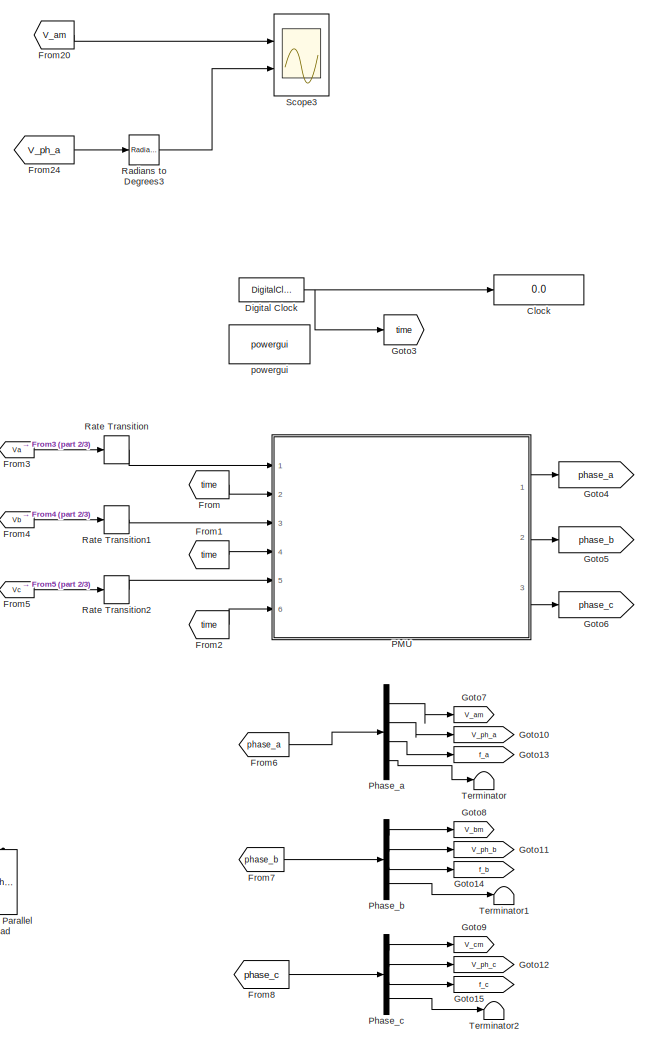
[diagram: root canvas - part 1/3, right side, full height]
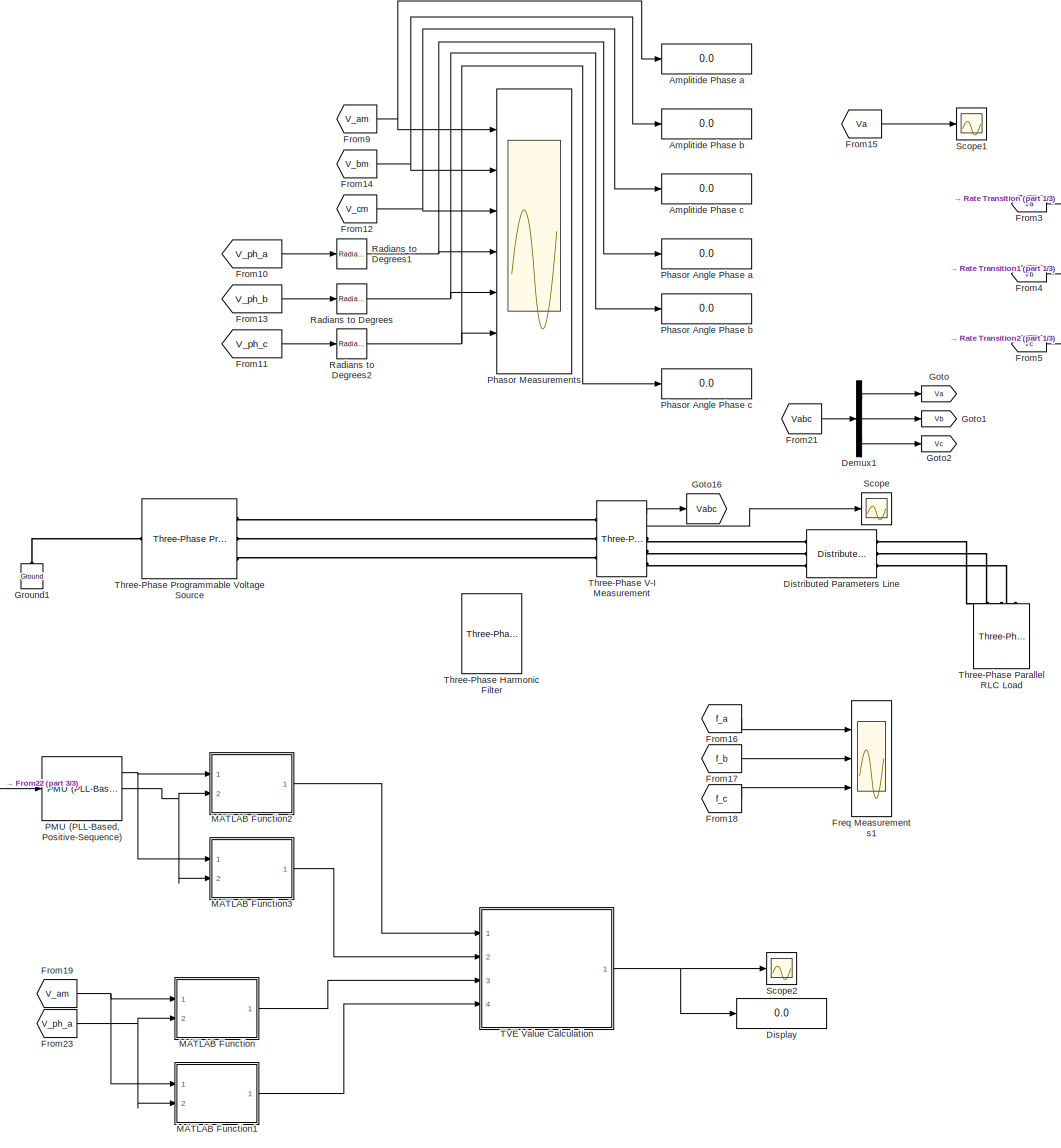
[diagram: root canvas - part 2/3, center side, full height]
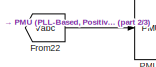
[diagram: root canvas - part 3/3, bottom left region]
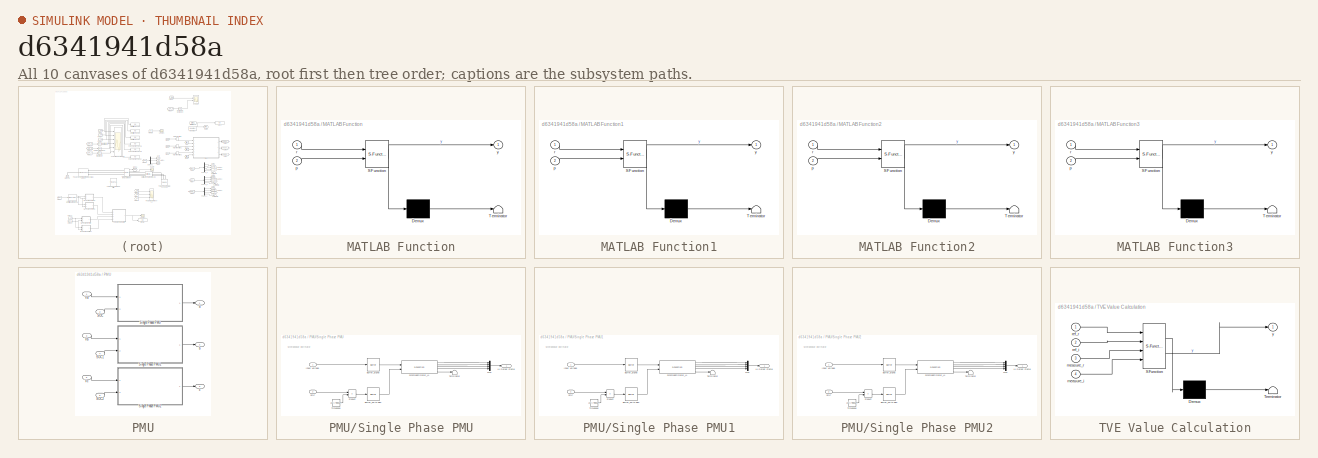
[diagram: thumbnail index - all 10 canvases of the model, root first then tree order]
MODEL slx_d6341941d58a
KIND model
CONFIG AbsTol = auto
CONFIG EnableMultiTasking = off
CONFIG FixedStep = auto
CONFIG MaxStep = auto
CONFIG MinStep = auto
CONFIG RelTol = 1e-3
CONFIG SampleTimeConstraint = Unconstrained
CONFIG Solver = VariableStepAuto
CONFIG SolverName = VariableStepAuto
CONFIG StartTime = 0.0
CONFIG StopTime = 3
BLOCK [Display] Amplitide Phase a
  Decimation = 1
  Ports = [1]
BLOCK [Display] Amplitide Phase b
  Decimation = 1
  Ports = [1]
BLOCK [Display] Amplitide Phase c
  Decimation = 1
  Ports = [1]
BLOCK [Display] Clock
  Decimation = 1
  Format = long
  Ports = [1]
BLOCK [Demux] Demux1
  Outputs = 3
  Ports = [1, 3]
BLOCK [DigitalClock] Digital Clock
  SampleTime = 1/50000
BLOCK [Display] Display
  Decimation = 1
  Ports = [1]
BLOCK [Reference] Distributed Parameters Line  REF=powerlib/Elements/Distributed Parameters Line
  Ports = [0, 0, 0, 0, 0, 3, 3]
  SourceBlock = powerlib/Elements/Distributed Parameters Line
  SourceProductBaseCode = PS
  SourceType = Distributed Parameters Line
BLOCK [Scope] Freq Measurements1
  Floating = off
  NumInputPorts = 3
  Ports = [3]
  ScopeSpecificationString = Simulink.scopes.TimeScopeBlockCfg('CurrentConfiguration', extmgr.ConfigurationSet(extmgr.Configuration('Core','General UI',true),extmgr.Configuration('Core','Source UI',true),extmgr.Configuration('Sources','WiredSimulink',true,'DataLogging',true,'DataLoggingVariableName','PMU_measure1'),extmgr.Configuration('Visuals','Time Domain',true,'SerializedDisplays',{struct('MinYLimReal','46.39879','MaxYLim...<+2771ch>
BLOCK [From] From
  GotoTag = time
BLOCK [From] From1
  GotoTag = time
BLOCK [From] From10
  GotoTag = V_ph_a
BLOCK [From] From11
  GotoTag = V_ph_c
BLOCK [From] From12
  GotoTag = V_cm
BLOCK [From] From13
  GotoTag = V_ph_b
BLOCK [From] From14
  GotoTag = V_bm
BLOCK [From] From15
  GotoTag = Va
BLOCK [From] From16
  GotoTag = f_a
BLOCK [From] From17
  GotoTag = f_b
BLOCK [From] From18
  GotoTag = f_c
BLOCK [From] From19
  GotoTag = V_am
BLOCK [From] From2
  GotoTag = time
BLOCK [From] From20
  GotoTag = V_am
BLOCK [From] From21
  GotoTag = Vabc
BLOCK [From] From22
  GotoTag = Vabc
BLOCK [From] From23
  GotoTag = V_ph_a
BLOCK [From] From24
  GotoTag = V_ph_a
BLOCK [From] From3
  GotoTag = Va
BLOCK [From] From4
  GotoTag = Vb
BLOCK [From] From5
  GotoTag = Vc
BLOCK [From] From6
  GotoTag = phase_a
BLOCK [From] From7
  GotoTag = phase_b
BLOCK [From] From8
  GotoTag = phase_c
BLOCK [From] From9
  GotoTag = V_am
BLOCK [Goto] Goto
  GotoTag = Va
BLOCK [Goto] Goto1
  GotoTag = Vb
BLOCK [Goto] Goto10
  GotoTag = V_ph_a
BLOCK [Goto] Goto11
  GotoTag = V_ph_b
BLOCK [Goto] Goto12
  GotoTag = V_ph_c
BLOCK [Goto] Goto13
  GotoTag = f_a
BLOCK [Goto] Goto14
  GotoTag = f_b
BLOCK [Goto] Goto15
  GotoTag = f_c
BLOCK [Goto] Goto16
  GotoTag = Vabc
BLOCK [Goto] Goto2
  GotoTag = Vc
BLOCK [Goto] Goto3
  GotoTag = time
BLOCK [Goto] Goto4
  GotoTag = phase_a
BLOCK [Goto] Goto5
  GotoTag = phase_b
BLOCK [Goto] Goto6
  GotoTag = phase_c
BLOCK [Goto] Goto7
  GotoTag = V_am
BLOCK [Goto] Goto8
  GotoTag = V_bm
BLOCK [Goto] Goto9
  GotoTag = V_cm
BLOCK [Reference] Ground1  REF=powerlib/Elements/Ground
  NameLocation = right
  Ports = [0, 0, 0, 0, 0, 1]
  SourceBlock = powerlib/Elements/Ground
  SourceProductBaseCode = PS
  SourceType = Ground
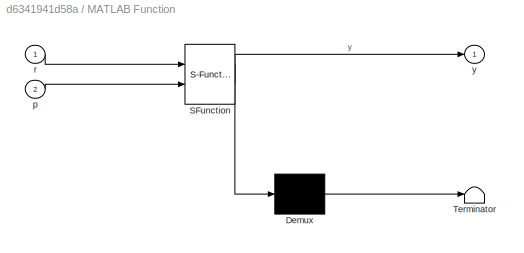
BLOCK [SubSystem] MATLAB Function
  ErrorFcn = Stateflow.Translate.translate
  PermitHierarchicalResolution = ExplicitOnly
  Ports = [2, 1]
  RequestExecContextInheritance = off
  SFBlockType = MATLAB Function
  TreatAsAtomicUnit = on
BLOCK [Demux] MATLAB Function/ Demux 
  Outputs = 1
  Ports = [1, 1]
BLOCK [S-Function] MATLAB Function/ SFunction 
  EnableBusSupport = on
  FunctionName = sf_sfun
  PortCounts = [2 2]
  Ports = [2, 2]
  SFcnIsStateOwnerBlock = off
  SFunctionDeploymentMode = off
  Tag = Stateflow S-Function 2
BLOCK [Terminator] MATLAB Function/ Terminator 
BLOCK [Inport] MATLAB Function/p
  Port = 2
BLOCK [Inport] MATLAB Function/r
BLOCK [Outport] MATLAB Function/y
BLOCK [SubSystem] MATLAB Function1
  ErrorFcn = Stateflow.Translate.translate
  PermitHierarchicalResolution = ExplicitOnly
  Ports = [2, 1]
  RequestExecContextInheritance = off
  SFBlockType = MATLAB Function
  TreatAsAtomicUnit = on
BLOCK [Demux] MATLAB Function1/ Demux 
  Outputs = 1
  Ports = [1, 1]
BLOCK [S-Function] MATLAB Function1/ SFunction 
  EnableBusSupport = on
  FunctionName = sf_sfun
  PortCounts = [2 2]
  Ports = [2, 2]
  SFcnIsStateOwnerBlock = off
  SFunctionDeploymentMode = off
  Tag = Stateflow S-Function 1
BLOCK [Terminator] MATLAB Function1/ Terminator 
BLOCK [Inport] MATLAB Function1/p
  Port = 2
BLOCK [Inport] MATLAB Function1/r
BLOCK [Outport] MATLAB Function1/y
BLOCK [SubSystem] MATLAB Function2
  ErrorFcn = Stateflow.Translate.translate
  PermitHierarchicalResolution = ExplicitOnly
  Ports = [2, 1]
  RequestExecContextInheritance = off
  SFBlockType = MATLAB Function
  TreatAsAtomicUnit = on
BLOCK [Demux] MATLAB Function2/ Demux 
  Outputs = 1
  Ports = [1, 1]
BLOCK [S-Function] MATLAB Function2/ SFunction 
  EnableBusSupport = on
  FunctionName = sf_sfun
  PortCounts = [2 2]
  Ports = [2, 2]
  SFcnIsStateOwnerBlock = off
  SFunctionDeploymentMode = off
  Tag = Stateflow S-Function 3
BLOCK [Terminator] MATLAB Function2/ Terminator 
BLOCK [Inport] MATLAB Function2/p
  Port = 2
BLOCK [Inport] MATLAB Function2/r
BLOCK [Outport] MATLAB Function2/y
BLOCK [SubSystem] MATLAB Function3
  ErrorFcn = Stateflow.Translate.translate
  PermitHierarchicalResolution = ExplicitOnly
  Ports = [2, 1]
  RequestExecContextInheritance = off
  SFBlockType = MATLAB Function
  TreatAsAtomicUnit = on
BLOCK [Demux] MATLAB Function3/ Demux 
  Outputs = 1
  Ports = [1, 1]
BLOCK [S-Function] MATLAB Function3/ SFunction 
  EnableBusSupport = on
  FunctionName = sf_sfun
  PortCounts = [2 2]
  Ports = [2, 2]
  SFcnIsStateOwnerBlock = off
  SFunctionDeploymentMode = off
  Tag = Stateflow S-Function 4
BLOCK [Terminator] MATLAB Function3/ Terminator 
BLOCK [Inport] MATLAB Function3/p
  Port = 2
BLOCK [Inport] MATLAB Function3/r
BLOCK [Outport] MATLAB Function3/y
BLOCK [SubSystem] PMU
  Ports = [6, 3]
  RequestExecContextInheritance = off
BLOCK [Reference] PMU (PLL-Based, Positive-Sequence)  REF=powerlib_meascontrol/Measurements/PMU
(PLL-Based,
Positive-Sequence)
  Ports = [1, 3]
  SourceBlock = powerlib_meascontrol/Measurements/PMU\n(PLL-Based,\nPositive-Sequence)
  SourceProductBaseCode = PS
  SourceType = PMU (PLL-Based, Positive-Sequence)
BLOCK [Inport] PMU/SOC
  Port = 2
BLOCK [Inport] PMU/SOC1
  Port = 4
BLOCK [Inport] PMU/SOC2
  Port = 6
BLOCK [SubSystem] PMU/Single Phase PMU
  Ports = [2, 1]
  RequestExecContextInheritance = off
BLOCK [Buffer] PMU/Single Phase PMU/Buffer_FRACSEC
  N = Window_Length
  OutputFrames = off
  V = Window_Length-Buffer_Overlap
BLOCK [Buffer] PMU/Single Phase PMU/Buffer_Signal
  N = Window_Length
  OutputFrames = off
  V = Window_Length-Buffer_Overlap
BLOCK [Inport] PMU/Single Phase PMU/Input Voltage
BLOCK [Outport] PMU/Single Phase PMU/L1 Output Frame
BLOCK [Mux] PMU/Single Phase PMU/Mux
  DisplayOption = bar
  Ports = [4, 1]
BLOCK [Product] PMU/Single Phase PMU/Product
  Ports = [2, 1]
BLOCK [Inport] PMU/Single Phase PMU/SOC
  Port = 2
BLOCK [S-Function] PMU/Single Phase PMU/SynchroEstimator_L1
  EnableBusSupport = off
  FunctionName = PMU_Estimator_Phase_A
  Parameters = Signal_Sample_rate,Nominal_Frequency,Window_Length,P_Iter,Frame_Rate,PhaseMode, Threshold_rocof, Lowpass_Coeff,Q_Iter,n_bins
  Ports = [2, 5]
  SFcnIsStateOwnerBlock = off
  SFunctionDeploymentMode = off
BLOCK [Terminator] PMU/Single Phase PMU/Terminator
BLOCK [Constant] PMU/Single Phase PMU/Timebase
  SampleTime = Signal_Sample_rate
  Value = 10^((TimeBase-1)*(-3))
BLOCK [SubSystem] PMU/Single Phase PMU1
  Ports = [2, 1]
  RequestExecContextInheritance = off
BLOCK [Buffer] PMU/Single Phase PMU1/Buffer_FRACSEC
  N = Window_Length
  OutputFrames = off
  V = Window_Length-Buffer_Overlap
BLOCK [Buffer] PMU/Single Phase PMU1/Buffer_Signal
  N = Window_Length
  OutputFrames = off
  V = Window_Length-Buffer_Overlap
BLOCK [Inport] PMU/Single Phase PMU1/Input Voltage
BLOCK [Outport] PMU/Single Phase PMU1/L1 Output Frame
BLOCK [Mux] PMU/Single Phase PMU1/Mux
  DisplayOption = bar
  Ports = [4, 1]
BLOCK [Product] PMU/Single Phase PMU1/Product
  Ports = [2, 1]
BLOCK [Inport] PMU/Single Phase PMU1/SOC
  Port = 2
BLOCK [S-Function] PMU/Single Phase PMU1/SynchroEstimator_L1
  EnableBusSupport = off
  FunctionName = PMU_Estimator_Phase_B
  Parameters = Signal_Sample_rate,Nominal_Frequency,Window_Length,P_Iter,Frame_Rate,PhaseMode, Threshold_rocof, Lowpass_Coeff,Q_Iter,n_bins
  Ports = [2, 5]
  SFcnIsStateOwnerBlock = off
  SFunctionDeploymentMode = off
BLOCK [Terminator] PMU/Single Phase PMU1/Terminator
BLOCK [Constant] PMU/Single Phase PMU1/Timebase
  SampleTime = Signal_Sample_rate
  Value = 10^((TimeBase-1)*(-3))
BLOCK [SubSystem] PMU/Single Phase PMU2
  Ports = [2, 1]
  RequestExecContextInheritance = off
BLOCK [Buffer] PMU/Single Phase PMU2/Buffer_FRACSEC
  N = Window_Length
  OutputFrames = off
  V = Window_Length-Buffer_Overlap
BLOCK [Buffer] PMU/Single Phase PMU2/Buffer_Signal
  N = Window_Length
  OutputFrames = off
  V = Window_Length-Buffer_Overlap
BLOCK [Inport] PMU/Single Phase PMU2/Input Voltage
BLOCK [Outport] PMU/Single Phase PMU2/L1 Output Frame
BLOCK [Mux] PMU/Single Phase PMU2/Mux
  DisplayOption = bar
  Ports = [4, 1]
BLOCK [Product] PMU/Single Phase PMU2/Product
  Ports = [2, 1]
BLOCK [Inport] PMU/Single Phase PMU2/SOC
  Port = 2
BLOCK [S-Function] PMU/Single Phase PMU2/SynchroEstimator_L1
  EnableBusSupport = off
  FunctionName = PMU_Estimator_Phase_B
  Parameters = Signal_Sample_rate,Nominal_Frequency,Window_Length,P_Iter,Frame_Rate,PhaseMode, Threshold_rocof, Lowpass_Coeff,Q_Iter,n_bins
  Ports = [2, 5]
  SFcnIsStateOwnerBlock = off
  SFunctionDeploymentMode = off
BLOCK [Terminator] PMU/Single Phase PMU2/Terminator
BLOCK [Constant] PMU/Single Phase PMU2/Timebase
  SampleTime = Signal_Sample_rate
  Value = 10^((TimeBase-1)*(-3))
BLOCK [Inport] PMU/Va
BLOCK [Inport] PMU/Vb
  Port = 3
BLOCK [Inport] PMU/Vc
  Port = 5
BLOCK [Outport] PMU/a
BLOCK [Outport] PMU/b
  Port = 2
BLOCK [Outport] PMU/c
  Port = 3
BLOCK [Demux] Phase_a
  Ports = [1, 4]
BLOCK [Demux] Phase_b
  Ports = [1, 4]
BLOCK [Demux] Phase_c
  Ports = [1, 4]
BLOCK [Display] Phasor Angle Phase a
  Decimation = 1
  Ports = [1]
BLOCK [Display] Phasor Angle Phase b
  Decimation = 1
  Ports = [1]
BLOCK [Display] Phasor Angle Phase c
  Decimation = 1
  Ports = [1]
BLOCK [Scope] Phasor Measurements
  Floating = off
  NumInputPorts = 6
  Ports = [6]
  ScopeSpecificationString = Simulink.scopes.TimeScopeBlockCfg('CurrentConfiguration', extmgr.ConfigurationSet(extmgr.Configuration('Core','General UI',true),extmgr.Configuration('Core','Source UI',true),extmgr.Configuration('Sources','WiredSimulink',true,'DataLogging',true,'DataLoggingVariableName','PMU_measure'),extmgr.Configuration('Visuals','Time Domain',true,'SerializedDisplays',{struct('MinYLimReal','-28.75','MaxYLimRea...<+4909ch>
BLOCK [Reference] Radians to Degrees  REF=simulink_extras/Transformations/Radians
to Degrees
  Ports = [1, 1]
  SourceBlock = simulink_extras/Transformations/Radians\nto Degrees
  SourceProductBaseCode = SL
  SourceType = RadiansToDegrees
BLOCK [Reference] Radians to Degrees1  REF=simulink_extras/Transformations/Radians
to Degrees
  Ports = [1, 1]
  SourceBlock = simulink_extras/Transformations/Radians\nto Degrees
  SourceProductBaseCode = SL
  SourceType = RadiansToDegrees
BLOCK [Reference] Radians to Degrees2  REF=simulink_extras/Transformations/Radians
to Degrees
  Ports = [1, 1]
  SourceBlock = simulink_extras/Transformations/Radians\nto Degrees
  SourceProductBaseCode = SL
  SourceType = RadiansToDegrees
BLOCK [Reference] Radians to Degrees3  REF=simulink_extras/Transformations/Radians
to Degrees
  Ports = [1, 1]
  SourceBlock = simulink_extras/Transformations/Radians\nto Degrees
  SourceProductBaseCode = SL
  SourceType = RadiansToDegrees
BLOCK [RateTransition] Rate Transition
  OutPortSampleTime = 1/50000
BLOCK [RateTransition] Rate Transition1
  OutPortSampleTime = 1/50000
BLOCK [RateTransition] Rate Transition2
  OutPortSampleTime = 1/50000
BLOCK [Scope] Scope
  Floating = off
  NumInputPorts = 1
  Ports = [1]
  ScopeSpecificationString = Simulink.scopes.TimeScopeBlockCfg('CurrentConfiguration', extmgr.ConfigurationSet(extmgr.Configuration('Core','General UI',true),extmgr.Configuration('Core','Source UI',true),extmgr.Configuration('Sources','WiredSimulink',true,'DataLoggingVariableName','Current','DataLogging',true,'DataLoggingSaveFormat','StructureWithTime'),extmgr.Configuration('Visuals','Time Domain',true,'SerializedDisplays',{s...<+1591ch>
BLOCK [Scope] Scope1
  Floating = off
  NumInputPorts = 1
  Ports = [1]
  ScopeSpecificationString = Simulink.scopes.TimeScopeBlockCfg('CurrentConfiguration', extmgr.ConfigurationSet(extmgr.Configuration('Core','General UI',true),extmgr.Configuration('Core','Source UI',true),extmgr.Configuration('Sources','WiredSimulink',true,'DataLoggingVariableName','ScopeData1'),extmgr.Configuration('Visuals','Time Domain',true,'SerializedDisplays',{struct('MinYLimReal','-0.1017','MaxYLimReal','0.12681','YLabe...<+1437ch>
BLOCK [Scope] Scope2
  Floating = off
  NumInputPorts = 1
  Ports = [1]
  ScopeSpecificationString = Simulink.scopes.TimeScopeBlockCfg('CurrentConfiguration', extmgr.ConfigurationSet(extmgr.Configuration('Core','General UI',true),extmgr.Configuration('Core','Source UI',true),extmgr.Configuration('Sources','WiredSimulink',true,'DataLoggingVariableName','ScopeData1'),extmgr.Configuration('Visuals','Time Domain',true,'SerializedDisplays',{struct('MinYLimReal','-0.19881','MaxYLimReal','1.78927','YLab...<+1451ch>
BLOCK [Scope] Scope3
  Floating = off
  NumInputPorts = 2
  Ports = [2]
  ScopeSpecificationString = Simulink.scopes.TimeScopeBlockCfg('CurrentConfiguration', extmgr.ConfigurationSet(extmgr.Configuration('Core','General UI',true),extmgr.Configuration('Core','Source UI',true),extmgr.Configuration('Sources','WiredSimulink',true,'DataLoggingVariableName','ScopeData1'),extmgr.Configuration('Visuals','Time Domain',true,'SerializedDisplays',{struct('MinYLimReal','-28.75','MaxYLimReal','258.75','YLabelR...<+2074ch>
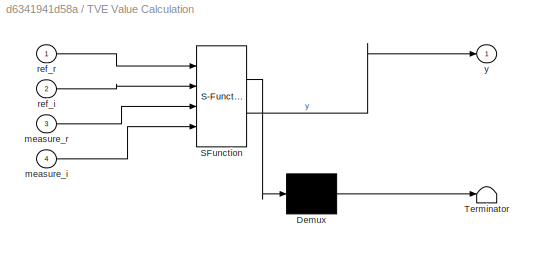
BLOCK [SubSystem] TVE Value Calculation
  ErrorFcn = Stateflow.Translate.translate
  PermitHierarchicalResolution = ExplicitOnly
  Ports = [4, 1]
  RequestExecContextInheritance = off
  SFBlockType = MATLAB Function
  TreatAsAtomicUnit = on
BLOCK [Demux] TVE Value Calculation/ Demux 
  Outputs = 1
  Ports = [1, 1]
BLOCK [S-Function] TVE Value Calculation/ SFunction 
  EnableBusSupport = on
  FunctionName = sf_sfun
  PortCounts = [4 2]
  Ports = [4, 2]
  SFcnIsStateOwnerBlock = off
  SFunctionDeploymentMode = off
  Tag = Stateflow S-Function 5
BLOCK [Terminator] TVE Value Calculation/ Terminator 
BLOCK [Inport] TVE Value Calculation/measure_i
  Port = 4
BLOCK [Inport] TVE Value Calculation/measure_r
  Port = 3
BLOCK [Inport] TVE Value Calculation/ref_i
  Port = 2
BLOCK [Inport] TVE Value Calculation/ref_r
BLOCK [Outport] TVE Value Calculation/y
BLOCK [Terminator] Terminator
BLOCK [Terminator] Terminator1
BLOCK [Terminator] Terminator2
BLOCK [Reference] Three-Phase Harmonic Filter  REF=powerlib/Elements/Three-Phase
Harmonic Filter
  AttributesFormatString = \n
  NameLocation = right
  Ports = [0, 0, 0, 0, 0, 3, 1]
  SourceBlock = powerlib/Elements/Three-Phase\nHarmonic Filter
  SourceProductBaseCode = PS
  SourceType = Three-Phase Harmonic Filter
BLOCK [Reference] Three-Phase Parallel RLC Load  REF=powerlib/Elements/Three-Phase
Parallel RLC Load
  AttributesFormatString = \n
  NameLocation = right
  Ports = [0, 0, 0, 0, 0, 3]
  SourceBlock = powerlib/Elements/Three-Phase\nParallel RLC Load
  SourceProductBaseCode = PS
  SourceType = Three-Phase Parallel RLC Load
BLOCK [Reference] Three-Phase Programmable Voltage Source  REF=powerlib/Electrical
Sources/Three-Phase
Programmable
Voltage Source
  Ports = [0, 0, 0, 0, 0, 1, 3]
  SourceBlock = powerlib/Electrical\nSources/Three-Phase\nProgrammable\nVoltage Source
  SourceProductBaseCode = PS
  SourceType = Three-Phase Programmable Voltage Source
BLOCK [Reference] Three-Phase V-I Measurement  REF=powerlib/Measurements/Three-Phase
V-I Measurement
  Ports = [0, 2, 0, 0, 0, 3, 3]
  SourceBlock = powerlib/Measurements/Three-Phase\nV-I Measurement
  SourceProductBaseCode = PS
  SourceType = Three-Phase VI Measurement
BLOCK [Reference] powergui  REF=powerlib/powergui
  Ports = []
  Priority = 1
  SourceBlock = powerlib/powergui
  SourceProductBaseCode = PS
  SourceType = PSB option menu block
ANNOTATION PMU/Single Phase PMU: Sychrophasor Estimator
ANNOTATION PMU/Single Phase PMU1: Sychrophasor Estimator
ANNOTATION PMU/Single Phase PMU2: Sychrophasor Estimator
LINE Demux1:1 -> Goto:1
LINE Demux1:2 -> Goto1:1
LINE Demux1:3 -> Goto2:1
NET Digital Clock:1 -> Clock:1, Goto3:1
LINE From10:1 -> Radians to Degrees1:1
LINE From11:1 -> Radians to Degrees2:1
NET From12:1 -> Amplitide Phase c:1, Phasor Measurements:3
LINE From13:1 -> Radians to Degrees:1
NET From14:1 -> Amplitide Phase b:1, Phasor Measurements:2
LINE From15:1 -> Scope1:1
LINE From16:1 -> Freq Measurements1:1
LINE From17:1 -> Freq Measurements1:2
LINE From18:1 -> Freq Measurements1:3
NET From19:1 -> MATLAB Function1:1, MATLAB Function:1
LINE From1:1 -> PMU:4
LINE From20:1 -> Scope3:1
LINE From21:1 -> Demux1:1
LINE From22:1 -> PMU (PLL-Based, Positive-Sequence):1
NET From23:1 -> MATLAB Function1:2, MATLAB Function:2
LINE From24:1 -> Radians to Degrees3:1
LINE From2:1 -> PMU:6
LINE From3:1 -> Rate Transition:1
LINE From4:1 -> Rate Transition1:1
LINE From5:1 -> Rate Transition2:1
LINE From6:1 -> Phase_a:1
LINE From7:1 -> Phase_b:1
LINE From8:1 -> Phase_c:1
NET From9:1 -> Amplitide Phase a:1, Phasor Measurements:1
LINE From:1 -> PMU:2
LINE MATLAB Function1:1 -> TVE Value Calculation:4
LINE MATLAB Function2:1 -> TVE Value Calculation:1
LINE MATLAB Function3:1 -> TVE Value Calculation:2
LINE MATLAB Function:1 -> TVE Value Calculation:3
NET PMU (PLL-Based, Positive-Sequence):1 -> MATLAB Function2:1, MATLAB Function3:1
NET PMU (PLL-Based, Positive-Sequence):2 -> MATLAB Function2:2, MATLAB Function3:2
LINE PMU/SOC1:1 -> PMU/Single Phase PMU1:2
LINE PMU/SOC2:1 -> PMU/Single Phase PMU2:2
LINE PMU/SOC:1 -> PMU/Single Phase PMU:2
LINE PMU/Single Phase PMU/Buffer_FRACSEC:1 -> PMU/Single Phase PMU/SynchroEstimator_L1:2
LINE PMU/Single Phase PMU/Buffer_Signal:1 -> PMU/Single Phase PMU/SynchroEstimator_L1:1
LINE PMU/Single Phase PMU/Input Voltage:1 -> PMU/Single Phase PMU/Buffer_Signal:1
LINE PMU/Single Phase PMU/Mux:1 -> PMU/Single Phase PMU/L1 Output Frame:1
LINE PMU/Single Phase PMU/Product:1 -> PMU/Single Phase PMU/Buffer_FRACSEC:1
LINE PMU/Single Phase PMU/SOC:1 -> PMU/Single Phase PMU/Product:1
LINE PMU/Single Phase PMU/SynchroEstimator_L1:1 -> PMU/Single Phase PMU/Mux:1
LINE PMU/Single Phase PMU/SynchroEstimator_L1:2 -> PMU/Single Phase PMU/Mux:2
LINE PMU/Single Phase PMU/SynchroEstimator_L1:3 -> PMU/Single Phase PMU/Mux:3
LINE PMU/Single Phase PMU/SynchroEstimator_L1:4 -> PMU/Single Phase PMU/Mux:4
LINE PMU/Single Phase PMU/SynchroEstimator_L1:5 -> PMU/Single Phase PMU/Terminator:1
LINE PMU/Single Phase PMU/Timebase:1 -> PMU/Single Phase PMU/Product:2
LINE PMU/Single Phase PMU1/Buffer_FRACSEC:1 -> PMU/Single Phase PMU1/SynchroEstimator_L1:2
LINE PMU/Single Phase PMU1/Buffer_Signal:1 -> PMU/Single Phase PMU1/SynchroEstimator_L1:1
LINE PMU/Single Phase PMU1/Input Voltage:1 -> PMU/Single Phase PMU1/Buffer_Signal:1
LINE PMU/Single Phase PMU1/Mux:1 -> PMU/Single Phase PMU1/L1 Output Frame:1
LINE PMU/Single Phase PMU1/Product:1 -> PMU/Single Phase PMU1/Buffer_FRACSEC:1
LINE PMU/Single Phase PMU1/SOC:1 -> PMU/Single Phase PMU1/Product:1
LINE PMU/Single Phase PMU1/SynchroEstimator_L1:1 -> PMU/Single Phase PMU1/Mux:1
LINE PMU/Single Phase PMU1/SynchroEstimator_L1:2 -> PMU/Single Phase PMU1/Mux:2
LINE PMU/Single Phase PMU1/SynchroEstimator_L1:3 -> PMU/Single Phase PMU1/Mux:3
LINE PMU/Single Phase PMU1/SynchroEstimator_L1:4 -> PMU/Single Phase PMU1/Mux:4
LINE PMU/Single Phase PMU1/SynchroEstimator_L1:5 -> PMU/Single Phase PMU1/Terminator:1
LINE PMU/Single Phase PMU1/Timebase:1 -> PMU/Single Phase PMU1/Product:2
LINE PMU/Single Phase PMU1:1 -> PMU/b:1
LINE PMU/Single Phase PMU2/Buffer_FRACSEC:1 -> PMU/Single Phase PMU2/SynchroEstimator_L1:2
LINE PMU/Single Phase PMU2/Buffer_Signal:1 -> PMU/Single Phase PMU2/SynchroEstimator_L1:1
LINE PMU/Single Phase PMU2/Input Voltage:1 -> PMU/Single Phase PMU2/Buffer_Signal:1
LINE PMU/Single Phase PMU2/Mux:1 -> PMU/Single Phase PMU2/L1 Output Frame:1
LINE PMU/Single Phase PMU2/Product:1 -> PMU/Single Phase PMU2/Buffer_FRACSEC:1
LINE PMU/Single Phase PMU2/SOC:1 -> PMU/Single Phase PMU2/Product:1
LINE PMU/Single Phase PMU2/SynchroEstimator_L1:1 -> PMU/Single Phase PMU2/Mux:1
LINE PMU/Single Phase PMU2/SynchroEstimator_L1:2 -> PMU/Single Phase PMU2/Mux:2
LINE PMU/Single Phase PMU2/SynchroEstimator_L1:3 -> PMU/Single Phase PMU2/Mux:3
LINE PMU/Single Phase PMU2/SynchroEstimator_L1:4 -> PMU/Single Phase PMU2/Mux:4
LINE PMU/Single Phase PMU2/SynchroEstimator_L1:5 -> PMU/Single Phase PMU2/Terminator:1
LINE PMU/Single Phase PMU2/Timebase:1 -> PMU/Single Phase PMU2/Product:2
LINE PMU/Single Phase PMU2:1 -> PMU/c:1
LINE PMU/Single Phase PMU:1 -> PMU/a:1
LINE PMU/Va:1 -> PMU/Single Phase PMU:1
LINE PMU/Vb:1 -> PMU/Single Phase PMU1:1
LINE PMU/Vc:1 -> PMU/Single Phase PMU2:1
LINE PMU:1 -> Goto4:1
LINE PMU:2 -> Goto5:1
LINE PMU:3 -> Goto6:1
LINE Phase_a:1 -> Goto7:1
LINE Phase_a:2 -> Goto10:1
LINE Phase_a:3 -> Goto13:1
LINE Phase_a:4 -> Terminator:1
LINE Phase_b:1 -> Goto8:1
LINE Phase_b:2 -> Goto11:1
LINE Phase_b:3 -> Goto14:1
LINE Phase_b:4 -> Terminator1:1
LINE Phase_c:1 -> Goto9:1
LINE Phase_c:2 -> Goto12:1
LINE Phase_c:3 -> Goto15:1
LINE Phase_c:4 -> Terminator2:1
NET Radians to Degrees1:1 -> Phasor Angle Phase a:1, Phasor Measurements:4
NET Radians to Degrees2:1 -> Phasor Angle Phase c:1, Phasor Measurements:6
LINE Radians to Degrees3:1 -> Scope3:2
NET Radians to Degrees:1 -> Phasor Angle Phase b:1, Phasor Measurements:5
LINE Rate Transition1:1 -> PMU:3
LINE Rate Transition2:1 -> PMU:5
LINE Rate Transition:1 -> PMU:1
NET TVE Value Calculation:1 -> Display:1, Scope2:1
LINE Three-Phase V-I Measurement:1 -> Goto16:1
LINE Three-Phase V-I Measurement:2 -> Scope:1
PLINE Distributed Parameters Line:LConn1 -- Three-Phase V-I Measurement:RConn1
PLINE Distributed Parameters Line:LConn2 -- Three-Phase V-I Measurement:RConn2
PLINE Distributed Parameters Line:LConn3 -- Three-Phase V-I Measurement:RConn3
PLINE Distributed Parameters Line:RConn1 -- Three-Phase Parallel RLC Load:LConn1
PLINE Distributed Parameters Line:RConn2 -- Three-Phase Parallel RLC Load:LConn2
PLINE Distributed Parameters Line:RConn3 -- Three-Phase Parallel RLC Load:LConn3
PLINE Ground1:LConn1 -- Three-Phase Programmable Voltage Source:LConn1
PLINE Three-Phase Programmable Voltage Source:RConn1 -- Three-Phase V-I Measurement:LConn1
PLINE Three-Phase Programmable Voltage Source:RConn2 -- Three-Phase V-I Measurement:LConn2
PLINE Three-Phase Programmable Voltage Source:RConn3 -- Three-Phase V-I Measurement:LConn3
note: NET lines group one-source signal fan-out (src -> all destinations, sorted); 1:1 wires keep LINE
CHART MATLAB Function1 states=1 transitions=1
  STATE_LABEL 'eML_blk_kernel()'
  STATE_LABEL 'SCRIPT:\nfunction y = fcn(r, p)\n\ny = r*tan(p)/(sqrt(1+(tan(p)^2)));\n'
CHART MATLAB Function states=1 transitions=1
  STATE_LABEL 'eML_blk_kernel()'
  STATE_LABEL 'SCRIPT:\nfunction y = fcn(r, p)\n\ny = r/(sqrt(1+(tan(p)^2)));\n'
CHART MATLAB Function2 states=1 transitions=1
  STATE_LABEL 'eML_blk_kernel()'
  STATE_LABEL 'SCRIPT:\nfunction y = fcn(r, p)\n\ny = r/(sqrt(1+(tan(p)^2)));\n'
CHART MATLAB Function3 states=1 transitions=1
  STATE_LABEL 'eML_blk_kernel()'
  STATE_LABEL 'SCRIPT:\nfunction y = fcn(r, p)\n\ny = r*tan(p)/(sqrt(1+(tan(p)^2)));\n'
CHART TVE Value Calculation states=1 transitions=1
  STATE_LABEL 'eML_blk_kernel()'
  STATE_LABEL 'SCRIPT:\nfunction y = fcn(ref_r, ref_i, measure_r, measure_i)\n\ny = (sqrt((((measure_r - ref_r)^2) + ((measure_i - ref_i)^2))/(((ref_r)^2) + ((ref_i)^2))));\n'
CHART  states=0 transitions=0
CHART  states=0 transitions=0
CHART  states=0 transitions=0
CHART  states=0 transitions=0
CHART  states=0 transitions=0
